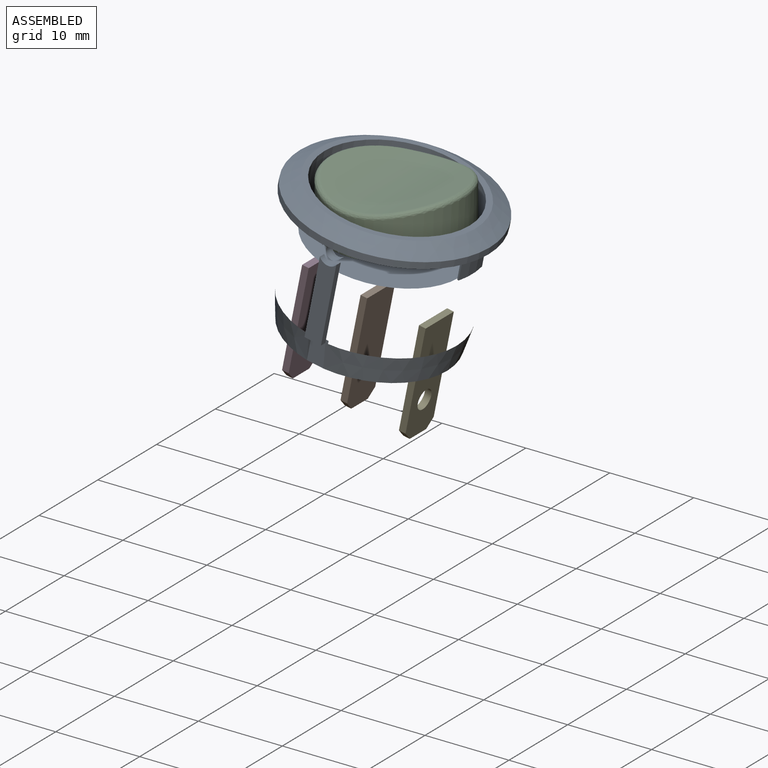
[diagram: assembled view]
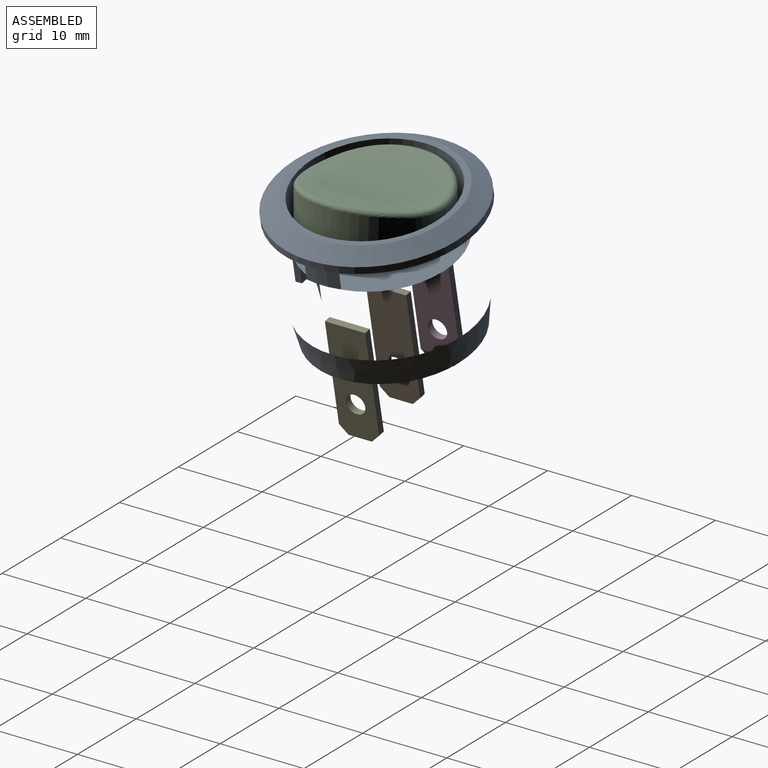
[diagram: assembled view, second angle]
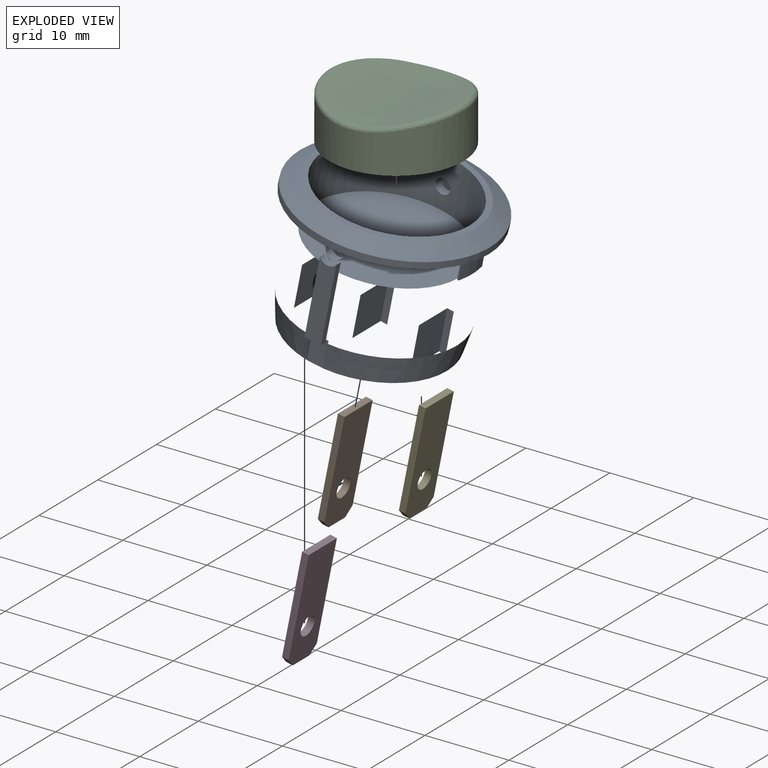
[diagram: exploded view]
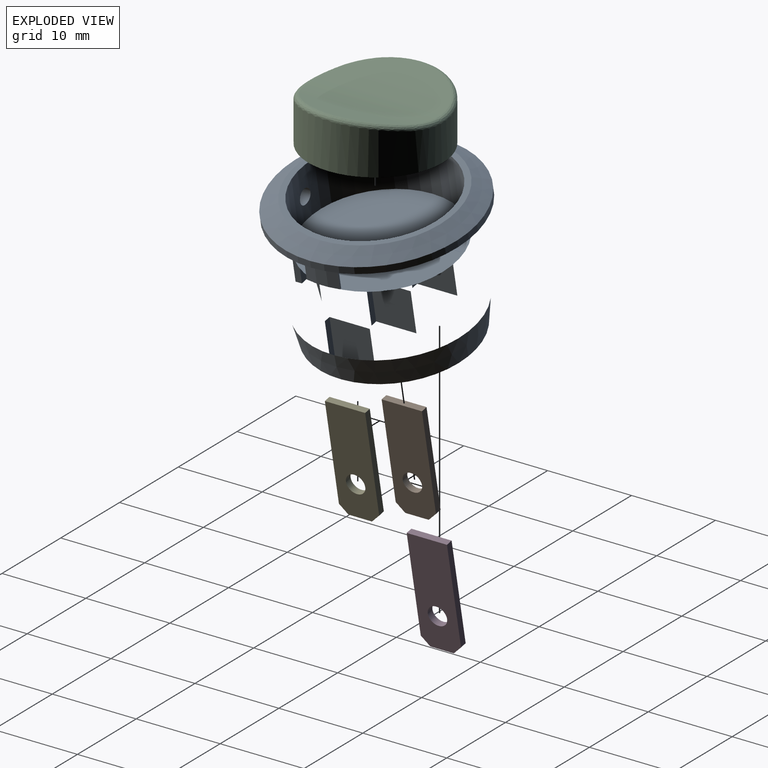
[diagram: exploded view, second angle]
ASSEMBLY  parts=5 mates=4
PART A: 49 faces, bbox 62.6x62.6x56.2 mm
  f0: plane 62.6x62.6mm, normal (0,0,-1), area 104.5mm2, adj f1,f3,f4,f5,f7,f8,f9,f11
  f1: plane 0.75x0.74mm, normal (1,0,0), area 0.6mm2, adj f0,f2,f3,f13
  f2: cylinder r=1.2mm len=2mm, axis (0,-1,0), area 1.7mm2, adj f1,f3,f4,f13
  f3: plane 2x0.74mm, normal (0,-1,0), area 0.7mm2, adj f0,f1,f2,f4
  f4: plane 0.75x0.74mm, normal (-1,0,0), area 0.6mm2, adj f0,f2,f3,f13
  f5: plane 3x0.2mm, normal (0.2,-0.98,0), area 0.6mm2, adj f0,f6,f7,f13
  f6: plane 4x0.4mm, normal (0,0,-1), area 0.8mm2, adj f5,f7,f8,f13
  f7: cylinder r=10.1mm len=4mm, axis (0,0,1), area 12.1mm2, adj f0,f5,f6,f8
  f8: plane 3x0.2mm, normal (0.2,0.98,0), area 0.6mm2, adj f0,f6,f7,f13
  f9: plane 42.6x39.8mm, normal (-0.2,0.98,0), area 0.6mm2, adj f0,f10,f11,f13
  f10: plane 4x0.4mm, normal (0,0,-1), area 0.8mm2, adj f9,f11,f12,f13
  f11: cylinder r=10.1mm len=4mm, axis (0,0,1), area 12.1mm2, adj f0,f9,f10,f12
  f12: plane 3x0.2mm, normal (-0.2,-0.98,0), area 0.6mm2, adj f0,f10,f11,f13
  f13: cylinder r=9.9mm len=19.8mm, axis (0,0,1), area 22.3mm2, adj f0,f1,f2,f4,f5,f6,f8,f9
  f14: cylinder r=11.5mm len=23mm, axis (0,0,-1), area 57.8mm2, adj f0,f15
  f15: cone r=9.5mm half-angle=59deg, axis (0,0,-1), area 153.9mm2, adj f14,f16
  f16: plane 19x19mm, normal (0,0,1), area 40.2mm2, adj f15,f17
  f17: cylinder r=8.8mm len=17.6mm, axis (0,0,1), area 326.6mm2, adj f16,f18,f20,f22
  f18: cylinder r=0.9mm len=1.8mm, axis (0,-1,0), area 6.2mm2, adj f17,f19
  f19: cylinder r=9.9mm len=1.8mm, axis (0,0,1), area 2.5mm2, adj f18
  f20: cylinder r=0.9mm len=1.8mm, axis (0,-1,0), area 6.2mm2, adj f17,f21
  f21: cylinder r=9.9mm len=1.8mm, axis (0,0,1), area 2.5mm2, adj f20
  f22: plane 17.6x17.6mm, normal (0,0,1), area 243.3mm2, adj f17
  f23: cylinder r=9.9mm len=19.75mm, axis (0,0,1), area 127.2mm2, adj f24,f46,f47,f48
  f24: cone r=9.35mm half-angle=9.8deg, axis (0,0,1), area 189.9mm2, adj f23,f25,f29,f45
  f25: plane 3.2x0.55mm, normal (1,0,0), area 0.9mm2, adj f24,f26,f28
  f26: plane 2x1.3mm, normal (0,0,-1), area 2.6mm2, adj f25,f27,f28,f45,f46,f48
  f27: plane 9.34x2mm, normal (0,-1,0), area 17.9mm2, adj f26,f46,f47,f48
  f28: plane 3.2x2mm, normal (0,-1,0), area 6.4mm2, adj f25,f26,f29,f45
  f29: plane 18.7x18.65mm, normal (0,0,-1), area 263.1mm2, adj f24,f28,f30,f32,f33,f34,f35,f37
  f30: plane 5x0.8mm, normal (0,-1,0), area 4mm2, adj f29,f31,f32,f34
  f31: plane 4.8x0.8mm, normal (0,0,-1), area 3.8mm2, adj f30,f32,f33,f34
  f32: plane 5x4.8mm, normal (-1,0,0), area 24mm2, adj f29,f30,f31,f33
  f33: plane 5x0.8mm, normal (0,1,0), area 4mm2, adj f29,f31,f32,f34
  f34: plane 5x4.8mm, normal (1,0,0), area 24mm2, adj f29,f30,f31,f33
  f35: plane 5x0.8mm, normal (0,-1,0), area 4mm2, adj f29,f36,f37,f39
  f36: plane 4.8x0.8mm, normal (0,0,-1), area 3.8mm2, adj f35,f37,f38,f39
  f37: plane 5x4.8mm, normal (-1,0,0), area 24mm2, adj f29,f35,f36,f38
  f38: plane 5x0.8mm, normal (0,1,0), area 4mm2, adj f29,f36,f37,f39
  f39: plane 5x4.8mm, normal (1,0,0), area 24mm2, adj f29,f35,f36,f38
  f40: plane 5x0.8mm, normal (0,-1,0), area 4mm2, adj f29,f41,f42,f44
  f41: plane 4.8x0.8mm, normal (0,0,-1), area 3.8mm2, adj f40,f42,f43,f44
  f42: plane 5x4.8mm, normal (-1,0,0), area 24mm2, adj f29,f40,f41,f43
  f43: plane 5x0.8mm, normal (0,1,0), area 4mm2, adj f29,f41,f42,f44
  f44: plane 5x4.8mm, normal (1,0,0), area 24mm2, adj f29,f40,f41,f43
  f45: plane 3.2x0.55mm, normal (-1,0,0), area 0.9mm2, adj f24,f26,f28
  f46: plane 9.34x0.75mm, normal (1,0,0), area 7mm2, adj f23,f26,f27,f47
  f47: cylinder r=1.2mm len=2mm, axis (0,-1,0), area 1.7mm2, adj f23,f27,f46,f48
  f48: plane 48.94x40.35mm, normal (-1,0,0), area 7mm2, adj f23,f26,f27,f47
PART B: 9 faces, bbox 0.8x4.8x13.2 mm
  f0: plane 13.2x4.8mm, normal (-1,0,0), area 58.2mm2, adj f1,f3,f4,f5,f6,f7,f8
  f1: plane 12.2x0.8mm, normal (0,-1,0), area 9.8mm2, adj f0,f2,f4,f7
  f2: plane 13.2x4.8mm, normal (1,0,0), area 58.2mm2, adj f1,f3,f4,f5,f6,f7,f8
  f3: plane 12.2x0.8mm, normal (0,1,0), area 9.8mm2, adj f0,f2,f4,f8
  f4: plane 4.8x0.8mm, normal (0,0,1), area 3.8mm2, adj f0,f1,f2,f3
  f5: plane 2.8x0.8mm, normal (0,0,-1), area 2.2mm2, adj f0,f2,f7,f8
  f6: cylinder r=1.15mm len=2.3mm, axis (-1,0,0), area 5.8mm2, adj f0,f2
  f7: plane 1x1mm, normal (0,-0.71,-0.71), area 1.1mm2, adj f0,f1,f2,f5
  f8: plane 1x1mm, normal (0,0.71,-0.71), area 1.1mm2, adj f0,f2,f3,f5
PART C: 9 faces, bbox 16x16x6 mm
  f0: cylinder r=8mm len=16mm, axis (0,0,-1), area 245.9mm2, adj f1,f5,f6,f7,f8
  f1: plane 16x16mm, normal (0,0,-1), area 201.1mm2, adj f0
  f2: plane 12.66x3.48mm, normal (0.2,0,0.98), area 31.7mm2, adj f4,f5
  f3: plane 12.66x3.48mm, normal (-0.2,0,0.98), area 31.7mm2, adj f4,f8
  f4: cylinder r=20mm len=15mm, axis (0,1,0), area 112.5mm2, adj f2,f3,f6,f7
  f5: bspline ~14.3x4.63mm, area 13.8mm2, adj f0,f2,f6,f7
  f6: bspline ~11.42x2.74mm, area 7.1mm2, adj f0,f4,f5,f8
  f7: bspline ~11.42x2.74mm, area 7.1mm2, adj f0,f4,f5,f8
  f8: bspline ~14.3x4.63mm, area 13.8mm2, adj f0,f3,f6,f7
PART D: same geometry as B
PART E: same geometry as B
PLACE A rot(axis=(0,1,0),11.3deg) t=(-8,-3.89,12.16)mm
PLACE B rot(axis=(0,1,0),11.3deg) t=(-12.86,-6.29,-10.12)mm
PLACE C t=(-7.71,-3.89,9.74)mm
PLACE D rot(axis=(0,1,0),11.3deg) t=(-19.83,-6.29,-8.73)mm
PLACE E rot(axis=(0,1,0),11.3deg) t=(-5.9,-6.29,-11.51)mm
MATE fastened E.f4 <-> A.f31  axis (0.2,0,0.98) through (-2.92,-3.89,1.35)mm
MATE fastened D.f4 <-> A.f41  axis (0.2,0,0.98) through (-16.85,-3.89,4.14)mm
MATE fastened C.f2 <-> A.f7  axis (0.2,0,0.98) through (-7.61,-3.89,14.12)mm
MATE fastened B.f4 <-> A.f7  axis (0.2,0,0.98) through (-9.88,-3.89,2.74)mm
